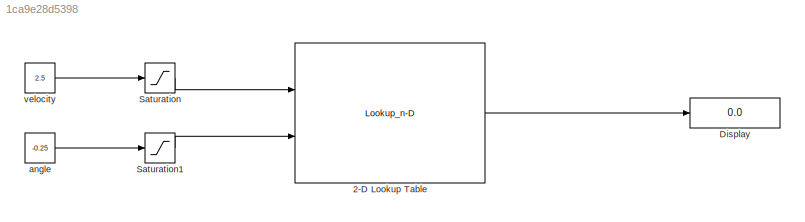
MODEL slx_1ca9e28d5398
KIND model
CONFIG AbsTol = auto
CONFIG EnableMultiTasking = off
CONFIG FixedStep = auto
CONFIG MaxStep = auto
CONFIG MinStep = auto
CONFIG RelTol = 1e-3
CONFIG SampleTimeConstraint = Unconstrained
CONFIG SolverName = VariableStepAuto
CONFIG StartTime = 0.0
CONFIG StopTime = 10.0
BLOCK [Lookup_n-D] 2-D Lookup Table
  BreakpointsForDimension1 = velocity
  BreakpointsForDimension2 = angles
  InputPortMap = u0,u1
  InternalRulePriority = Speed
  Ports = [2, 1]
  RndMeth = Simplest
  Table = F_force
BLOCK [Display] Display
  Decimation = 1
  Ports = [1]
BLOCK [Saturate] Saturation
  LowerLimit = 0
  UpperLimit = 832/3.6
BLOCK [Saturate] Saturation1
  LowerLimit = deg2rad(-15)
  UpperLimit = deg2rad(15)
BLOCK [Constant] angle
  Value = -0.25
BLOCK [Constant] velocity
  Value = 2.5
LINE 2-D Lookup Table:1 -> Display:1
LINE Saturation1:1 -> 2-D Lookup Table:2
LINE Saturation:1 -> 2-D Lookup Table:1
LINE angle:1 -> Saturation1:1
LINE velocity:1 -> Saturation:1
